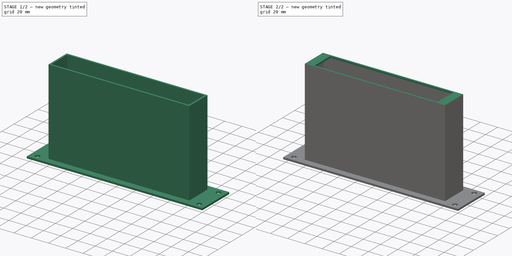
[diagram: build sequence overview — one tinted view per stage of 2, left to right]
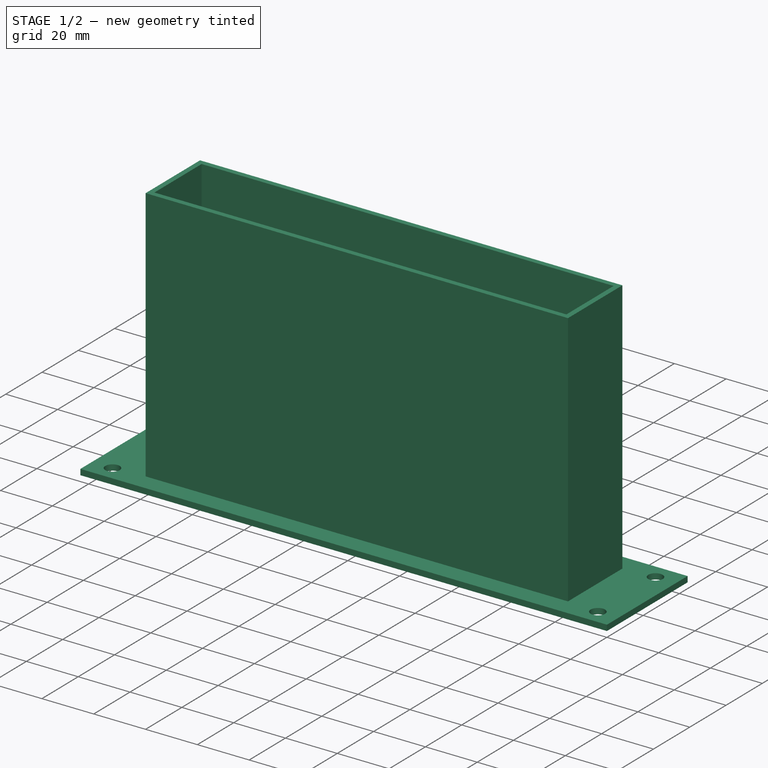
[diagram: stage 1 of 2 — iso view after this stage's code; geometry added in this stage tinted green]
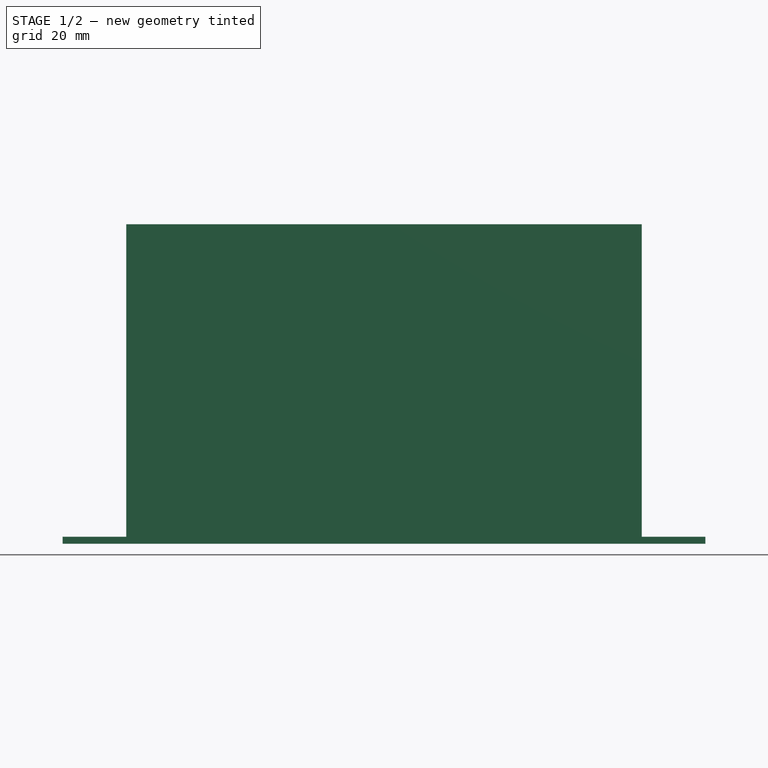
[diagram: stage 1 of 2 — front view after this stage's code; geometry added in this stage tinted green]
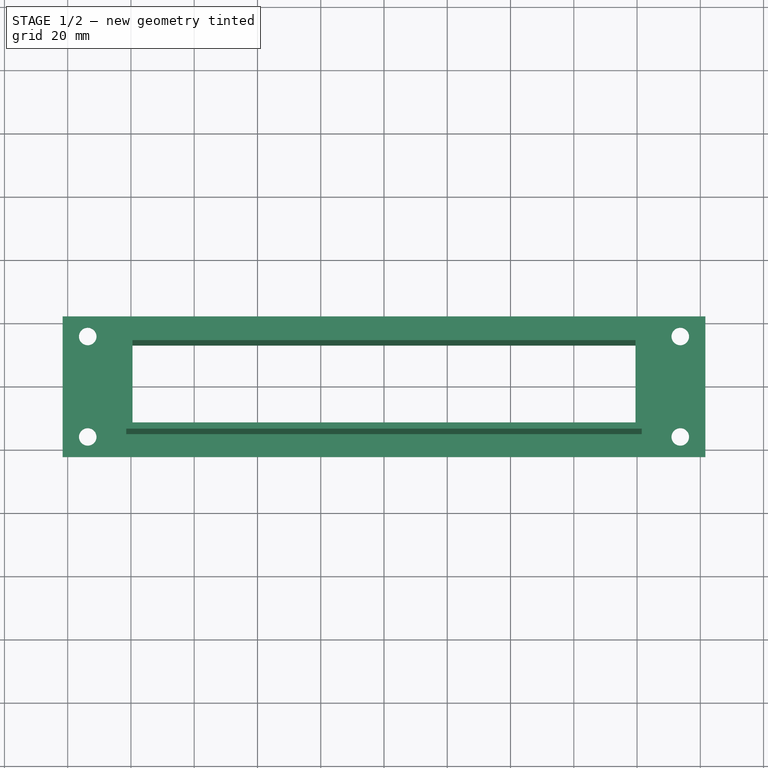
[diagram: stage 1 of 2 — top view after this stage's code; geometry added in this stage tinted green]
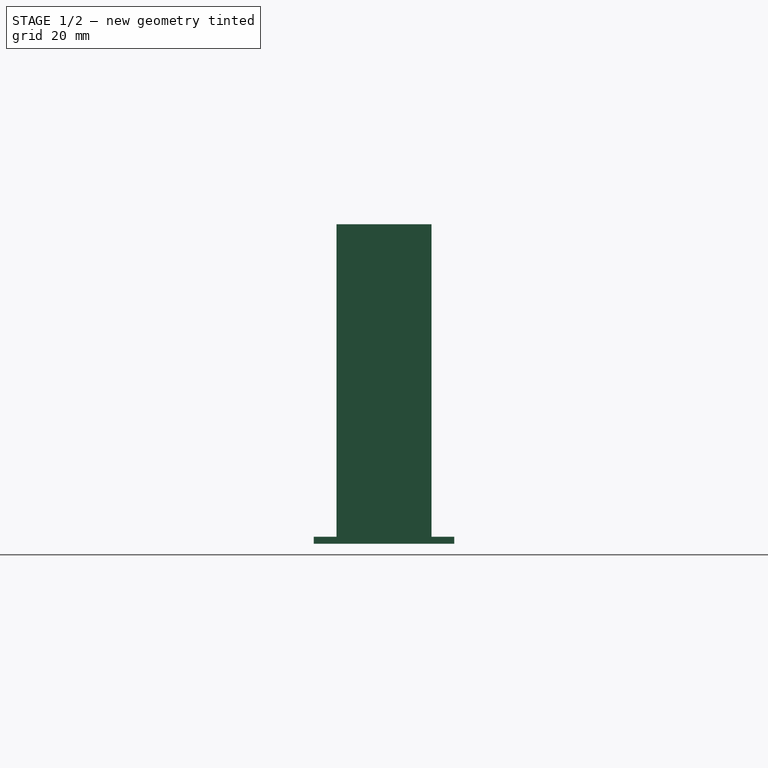
[diagram: stage 1 of 2 — right view after this stage's code; geometry added in this stage tinted green]
FCSTD DOCUMENT  (FreeCAD 0.19R24366 (Git))
Label: 1U_TPLink_v0
License: All rights reserved
LicenseURL: http://en.wikipedia.org/wiki/All_rights_reserved
objects: Sketcher::SketchObject×3, PartDesign::Pad×3, PartDesign::Body×1
note: 10 computed .brp shape members not serialized (recipe doc carries the construction recipe); baked Part::Feature solids carry a one-line shape summary decoded from their .brp

FEATURE [Sketcher::SketchObject] Sketch
  FullyConstrained = true
  MapMode = 5
  Support = -> [XY_Plane001]
  sketch-geometry (12):
    g0: LineSegment StartX=-101.6 StartY=22.225 StartZ=0 EndX=101.6 EndY=22.225 EndZ=0
    g1: LineSegment StartX=101.6 StartY=22.225 StartZ=0 EndX=101.6 EndY=-22.225 EndZ=0
    g2: LineSegment StartX=101.6 StartY=-22.225 StartZ=0 EndX=-101.6 EndY=-22.225 EndZ=0
    g3: LineSegment StartX=-101.6 StartY=-22.225 StartZ=0 EndX=-101.6 EndY=22.225 EndZ=0
    g4: Circle CenterX=-93.6625 CenterY=15.875 CenterZ=0 NormalX=0 NormalY=0 NormalZ=1 AngleXU=0 Radius=2.775
    g5: Circle CenterX=-93.6625 CenterY=-15.875 CenterZ=0 NormalX=0 NormalY=0 NormalZ=1 AngleXU=0 Radius=2.775
    g6: Circle CenterX=93.6625 CenterY=15.875 CenterZ=0 NormalX=0 NormalY=0 NormalZ=1 AngleXU=0 Radius=2.775
    g7: Circle CenterX=93.6625 CenterY=-15.875 CenterZ=0 NormalX=0 NormalY=0 NormalZ=1 AngleXU=0 Radius=2.775
    g8: LineSegment StartX=-79.5 StartY=13 StartZ=0 EndX=79.5 EndY=13 EndZ=0
    g9: LineSegment StartX=79.5 StartY=13 StartZ=0 EndX=79.5 EndY=-13 EndZ=0
    g10: LineSegment StartX=79.5 StartY=-13 StartZ=0 EndX=-79.5 EndY=-13 EndZ=0
    g11: LineSegment StartX=-79.5 StartY=-13 StartZ=0 EndX=-79.5 EndY=13 EndZ=0
  constraints (31):
    c: Coincident(g0,g1)
    c: Coincident(g1,g2)
    c: Coincident(g2,g3)
    c: Coincident(g3,g0)
    c: Horizontal(g0)
    c: Horizontal(g2)
    c: Vertical(g1)
    c: Vertical(g3)
    c: DistanceX(g0,g0) = 203.2
    c: DistanceY(g3,g3) = 44.45
    c: Symmetric(g0,g2,g-1)
    c: Diameter(g4) = 5.55
    c: DistanceX(g0,g4) = 7.9375
    c: DistanceY(g4,g0) = 6.35
    c: Diameter(g5) = 5.55
    c: Symmetric(g4,g5,g-1)
    c: Diameter(g6) = 5.55
    c: Diameter(g7) = 5.55
    c: Symmetric(g6,g4,g-2)
    c: Symmetric(g7,g5,g-2)
    c: Coincident(g8,g9)
    c: Coincident(g9,g10)
    c: Coincident(g10,g11)
    c: Coincident(g11,g8)
    c: Horizontal(g8)
    c: Horizontal(g10)
    c: Vertical(g9)
    c: Vertical(g11)
    c: DistanceX(g8,g8) = 159
    c: DistanceY(g9,g9) = 26
    c: Symmetric(g8,g9,g-1)
FEATURE [PartDesign::Pad] Pad
  Direction = (1,1,1)
  Length = 2.2
  Length2 = 100
  Profile = -> Sketch
  Refine = true
  Type = 0
FEATURE [Sketcher::SketchObject] Sketch001
  FullyConstrained = true
  MapMode = 5
  Placement = pos=(0,0,2.2) rot=(0,0,1;0rad)
  Support = -> [Pad]
  sketch-geometry (8):
    g0: LineSegment StartX=-79.5 StartY=13 StartZ=0 EndX=79.5 EndY=13 EndZ=0
    g1: LineSegment StartX=79.5 StartY=13 StartZ=0 EndX=79.5 EndY=-13 EndZ=0
    g2: LineSegment StartX=79.5 StartY=-13 StartZ=0 EndX=-79.5 EndY=-13 EndZ=0
    g3: LineSegment StartX=-79.5 StartY=-13 StartZ=0 EndX=-79.5 EndY=13 EndZ=0
    g4: LineSegment StartX=-81.5 StartY=15 StartZ=0 EndX=81.5 EndY=15 EndZ=0
    g5: LineSegment StartX=81.5 StartY=15 StartZ=0 EndX=81.5 EndY=-15 EndZ=0
    g6: LineSegment StartX=81.5 StartY=-15 StartZ=0 EndX=-81.5 EndY=-15 EndZ=0
    g7: LineSegment StartX=-81.5 StartY=-15 StartZ=0 EndX=-81.5 EndY=15 EndZ=0
  constraints (22):
    c: Coincident(g0,g1)
    c: Coincident(g1,g2)
    c: Coincident(g2,g3)
    c: Coincident(g3,g0)
    c: Horizontal(g0)
    c: Horizontal(g2)
    c: Vertical(g1)
    c: Vertical(g3)
    c: DistanceX(g0,g0) = 159
    c: DistanceY(g3,g3) = 26
    c: Symmetric(g0,g1,g-1)
    c: Coincident(g4,g5)
    c: Coincident(g5,g6)
    c: Coincident(g6,g7)
    c: Coincident(g7,g4)
    c: Horizontal(g4)
    c: Horizontal(g6)
    c: Vertical(g5)
    c: Vertical(g7)
    c: DistanceX(g4,g4) = 163
    c: DistanceY(g7,g7) = 30
    c: Symmetric(g4,g5,g-1)
FEATURE [PartDesign::Pad] Pad001
  BaseFeature = -> Pad
  Direction = (1,1,1)
  Length = 98.8
  Length2 = 100
  Profile = -> Sketch001
  Refine = true
  Type = 0
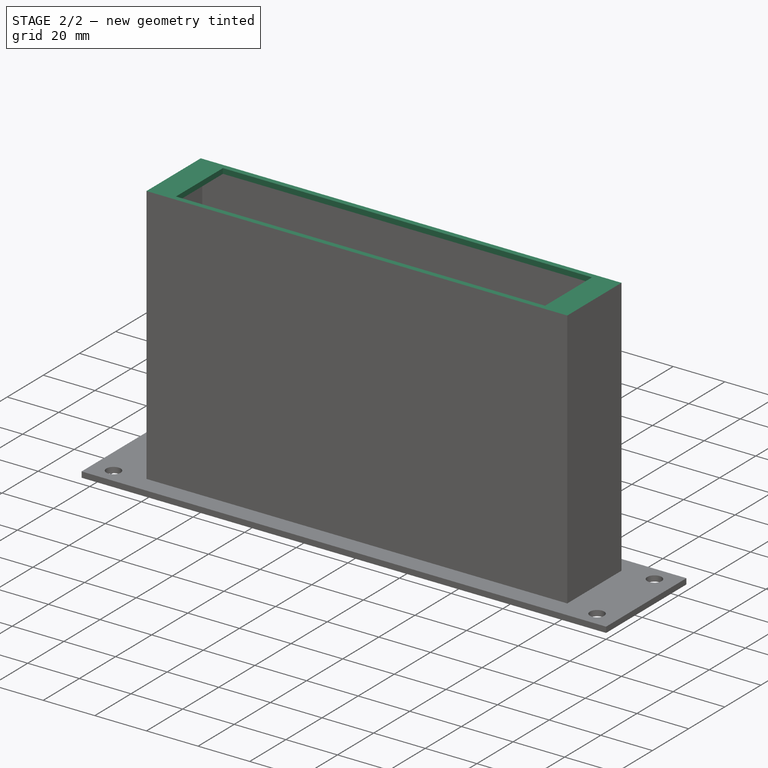
[diagram: stage 2 of 2 — iso view after this stage's code; geometry added in this stage tinted green]
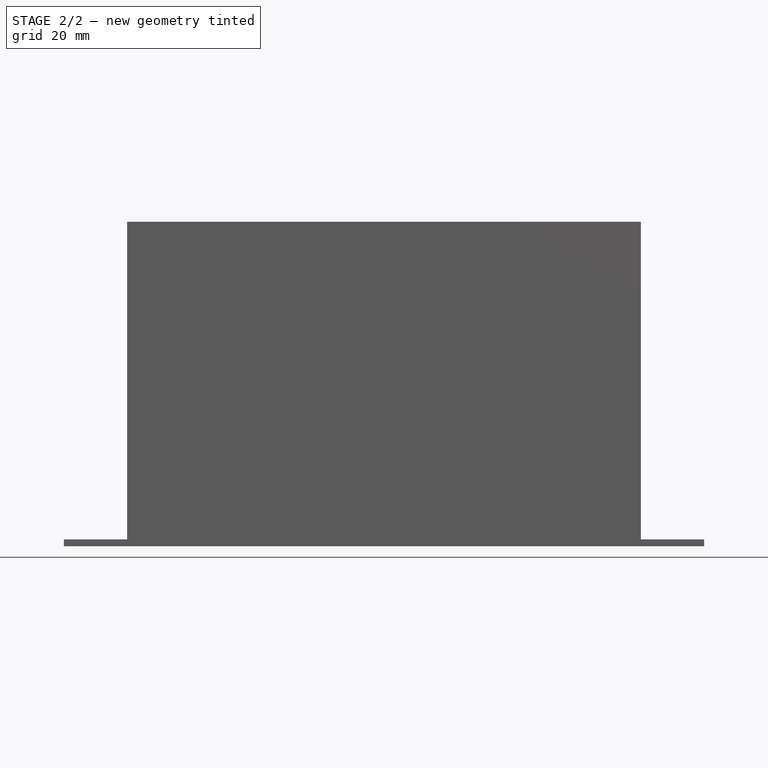
[diagram: stage 2 of 2 — front view after this stage's code; geometry added in this stage tinted green]
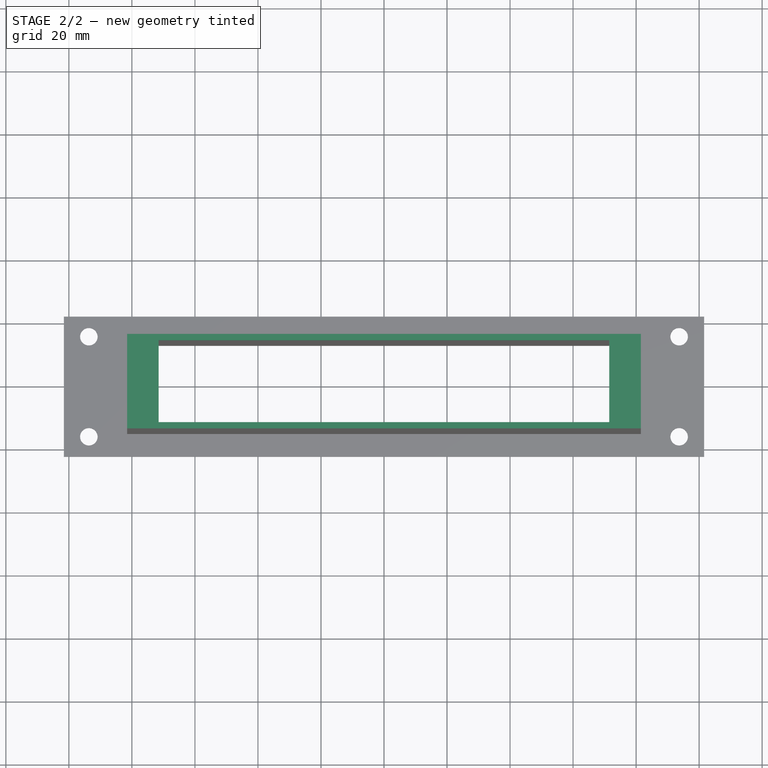
[diagram: stage 2 of 2 — top view after this stage's code; geometry added in this stage tinted green]
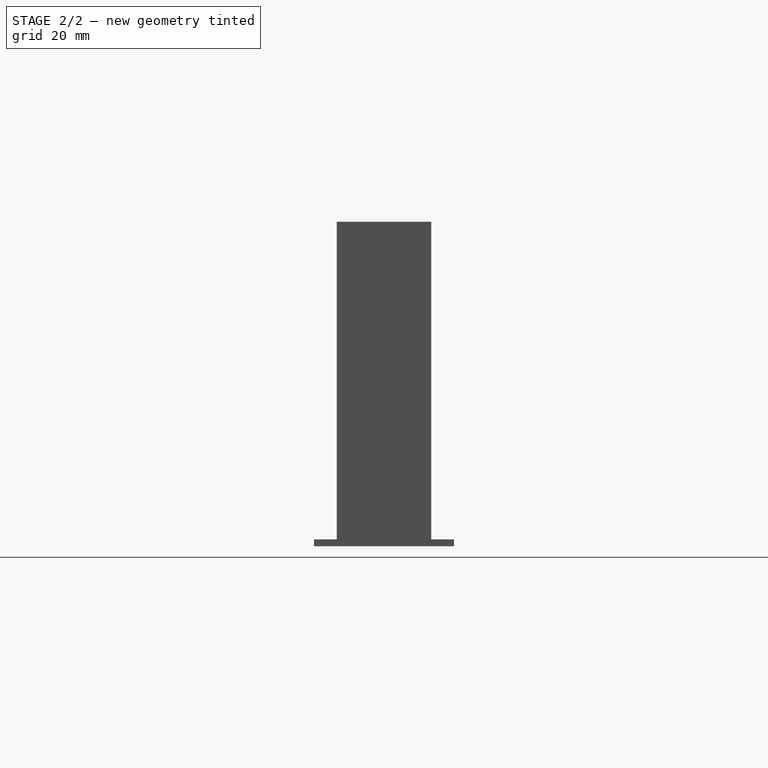
[diagram: stage 2 of 2 — right view after this stage's code; geometry added in this stage tinted green]
FEATURE [Sketcher::SketchObject] Sketch002
  FullyConstrained = true
  MapMode = 5
  Placement = pos=(0,0,101) rot=(0,0,1;0rad)
  Support = -> [Pad001]
  sketch-geometry (8):
    g0: LineSegment StartX=-81.5 StartY=15 StartZ=0 EndX=81.5 EndY=15 EndZ=0
    g1: LineSegment StartX=81.5 StartY=15 StartZ=0 EndX=81.5 EndY=-15 EndZ=0
    g2: LineSegment StartX=81.5 StartY=-15 StartZ=0 EndX=-81.5 EndY=-15 EndZ=0
    g3: LineSegment StartX=-81.5 StartY=-15 StartZ=0 EndX=-81.5 EndY=15 EndZ=0
    g4: LineSegment StartX=-71.5 StartY=13 StartZ=0 EndX=71.5 EndY=13 EndZ=0
    g5: LineSegment StartX=71.5 StartY=13 StartZ=0 EndX=71.5 EndY=-13 EndZ=0
    g6: LineSegment StartX=71.5 StartY=-13 StartZ=0 EndX=-71.5 EndY=-13 EndZ=0
    g7: LineSegment StartX=-71.5 StartY=-13 StartZ=0 EndX=-71.5 EndY=13 EndZ=0
  constraints (22):
    c: Coincident(g0,g1)
    c: Coincident(g1,g2)
    c: Coincident(g2,g3)
    c: Coincident(g3,g0)
    c: Horizontal(g0)
    c: Horizontal(g2)
    c: Vertical(g1)
    c: Vertical(g3)
    c: DistanceX(g0,g0) = 163
    c: DistanceY(g3,g3) = 30
    c: Symmetric(g0,g1,g-1)
    c: Coincident(g4,g5)
    c: Coincident(g5,g6)
    c: Coincident(g6,g7)
    c: Coincident(g7,g4)
    c: Horizontal(g4)
    c: Horizontal(g6)
    c: Vertical(g5)
    c: Vertical(g7)
    c: DistanceY(g7,g7) = 26
    c: Symmetric(g4,g5,g-1)
    c: DistanceX(g4,g4) = 143
FEATURE [PartDesign::Pad] Pad002
  BaseFeature = -> Pad001
  Direction = (1,1,1)
  Length = 2
  Length2 = 100
  Profile = -> Sketch002
  Refine = true
  Type = 0
FEATURE [PartDesign::Body] Body001
  Group = -> [Sketch,Pad,Sketch001,Pad001,Sketch002,Pad002]
  Origin = -> Origin001
  Tip = -> Pad002
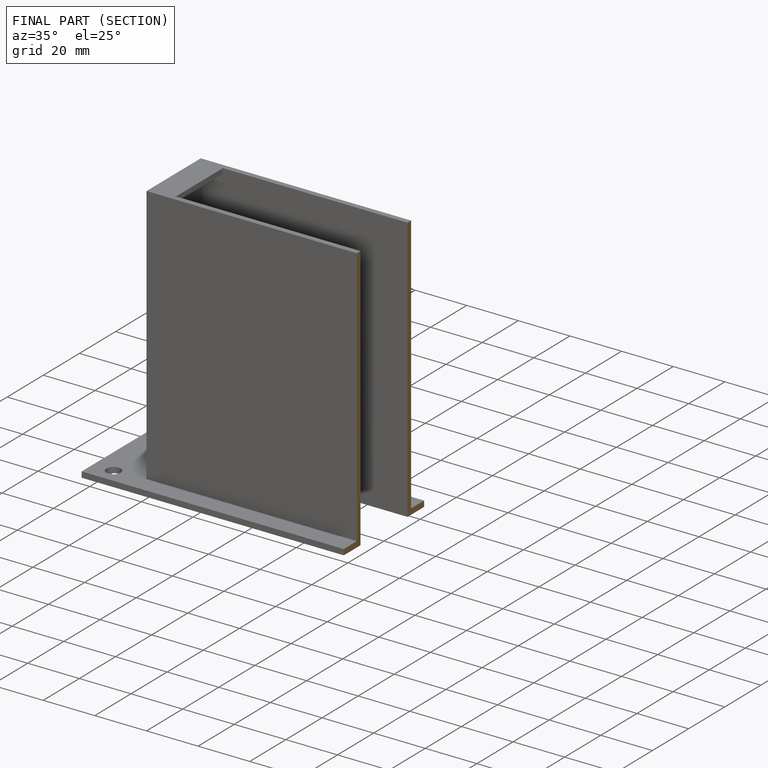
[diagram: finished part — half-section view (interior)]
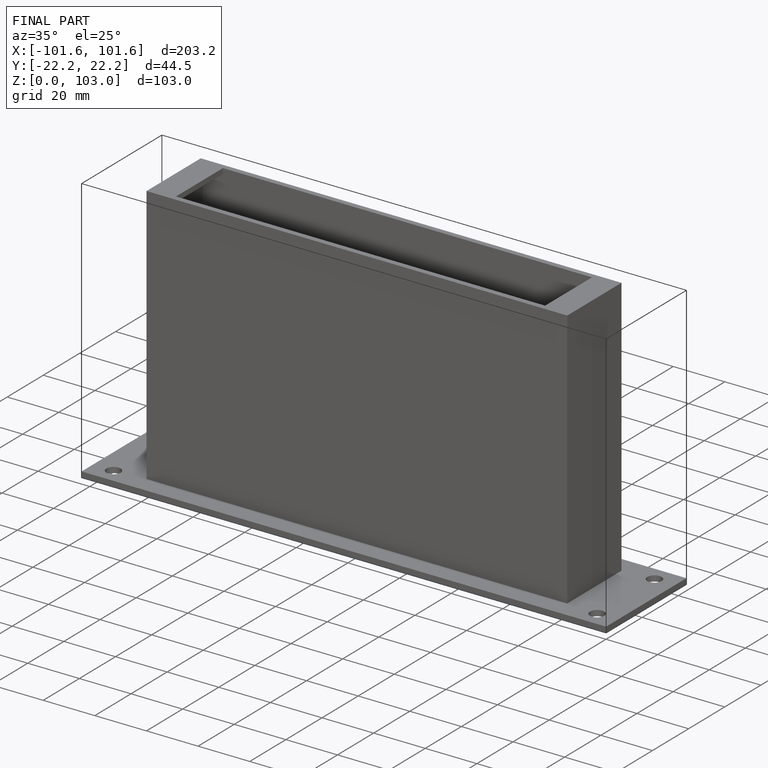
[diagram: finished part — iso view with bounding-box wireframe]
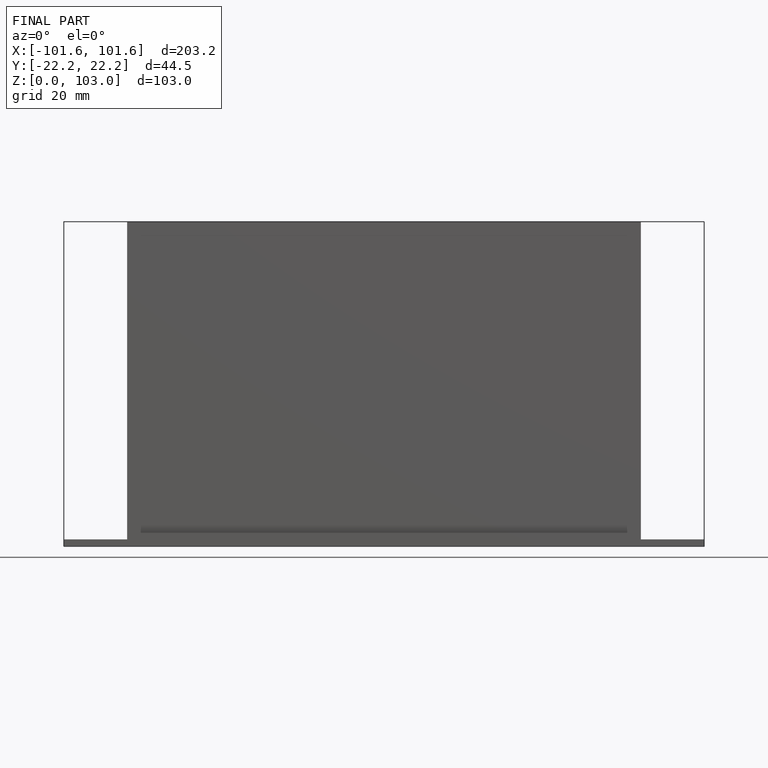
[diagram: finished part — front view with bounding-box wireframe]
